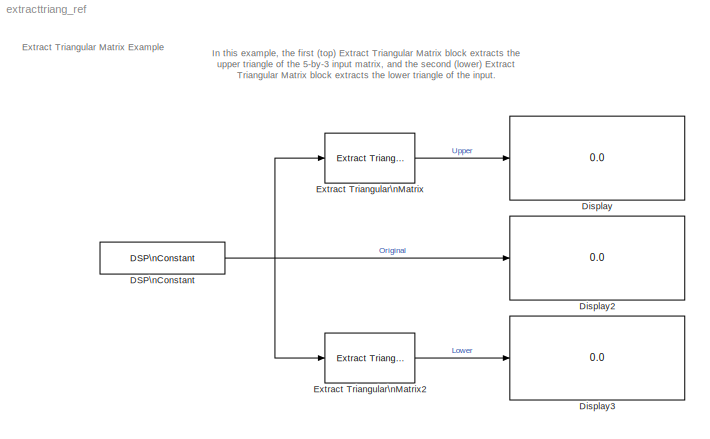
MODEL extracttriang_ref
KIND model
CONFIG AbsTol = auto
CONFIG FixedStep = auto
CONFIG MaxStep = auto
CONFIG MinStep = auto
CONFIG PostLoadFcn = set_param(gcs,'SimulationCommand','Update')
CONFIG RelTol = 1e-3
CONFIG Solver = FixedStepDiscrete
CONFIG SolverMode = Auto
CONFIG StartTime = 0.0
CONFIG StopTime = 10.0
BLOCK [Reference] DSP\nConstant  REF=dspsrcs3/DSP\nConstant
  FramebasedOutput = off
  InterpretAs1D = off
  Ports = [0, 1]
  SampleMode = Discrete
  SourceBlock = dspsrcs3/DSP\nConstant
  SourceType = DSP Constant
  Ts = 1
  Value = [1:3;4:6;7:9;10:12;13:15]
BLOCK [Display] Display
  Decimation = 1
  Floating = off
  Format = short
  Ports = [1]
  SampleTime = -1
BLOCK [Display] Display2
  Decimation = 1
  Floating = off
  Format = short
  Ports = [1]
  SampleTime = -1
BLOCK [Display] Display3
  Decimation = 1
  Floating = off
  Format = short
  Ports = [1]
  SampleTime = -1
BLOCK [Reference] Extract Triangular\nMatrix  REF=dspmtrx3/Extract Triangular\nMatrix
  Ports = [1, 1]
  SourceBlock = dspmtrx3/Extract Triangular\nMatrix
  SourceType = Extract Triangular Matrix
  fcn = Upper
BLOCK [Reference] Extract Triangular\nMatrix2  REF=dspmtrx3/Extract Triangular\nMatrix
  Ports = [1, 1]
  SourceBlock = dspmtrx3/Extract Triangular\nMatrix
  SourceType = Extract Triangular Matrix
  fcn = Lower
NET DSP\nConstant:1 -> Display2:1, Extract Triangular\nMatrix2:1, Extract Triangular\nMatrix:1
LINE Extract Triangular\nMatrix2:1 -> Display3:1
LINE Extract Triangular\nMatrix:1 -> Display:1
note: NET lines group one-source signal fan-out (src -> all destinations, sorted); 1:1 wires keep LINE
